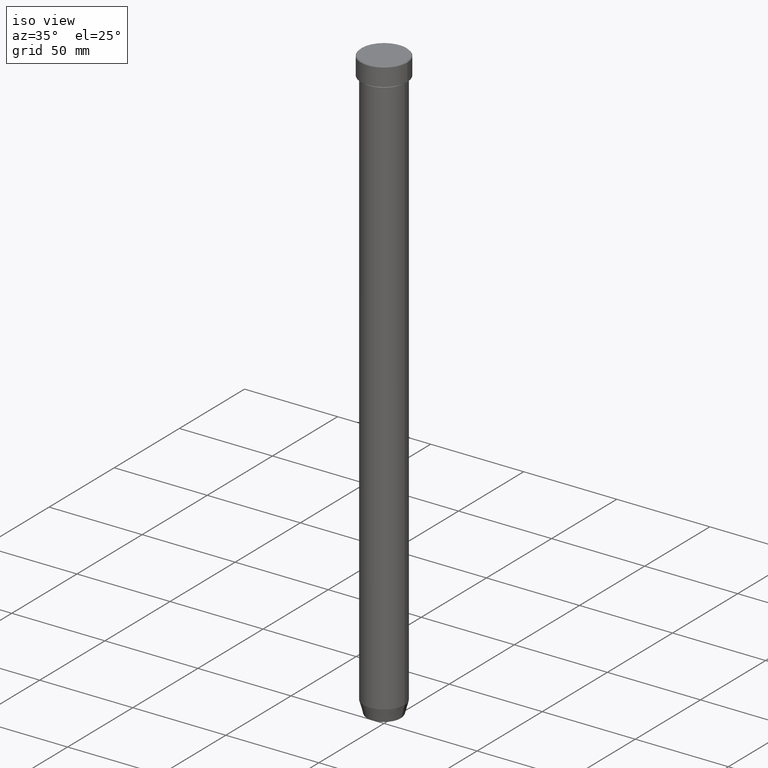
[diagram: clean part render]
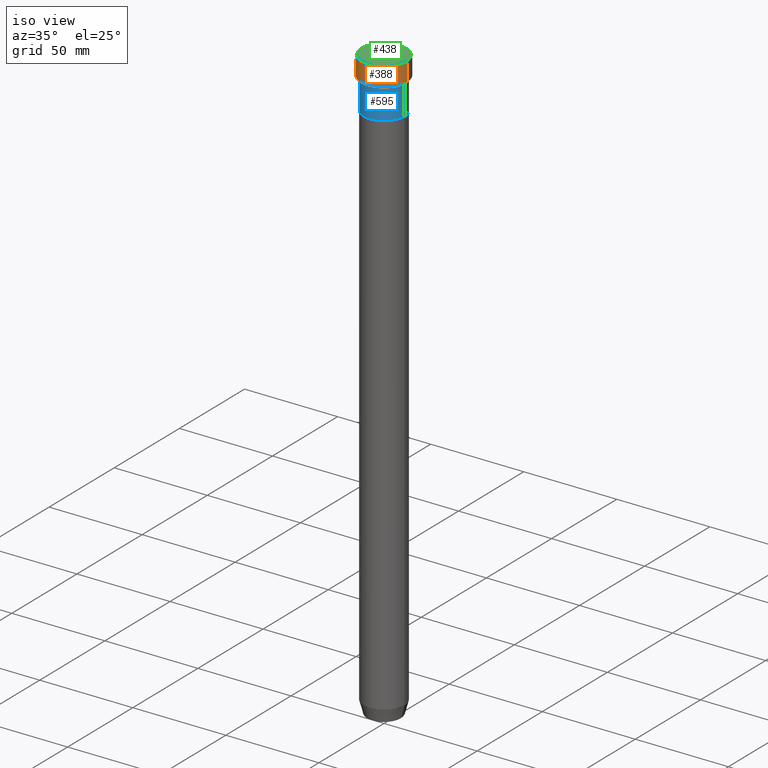
[diagram: same view with three faces highlighted in distinct colors, each labeled with its STEP entity id]
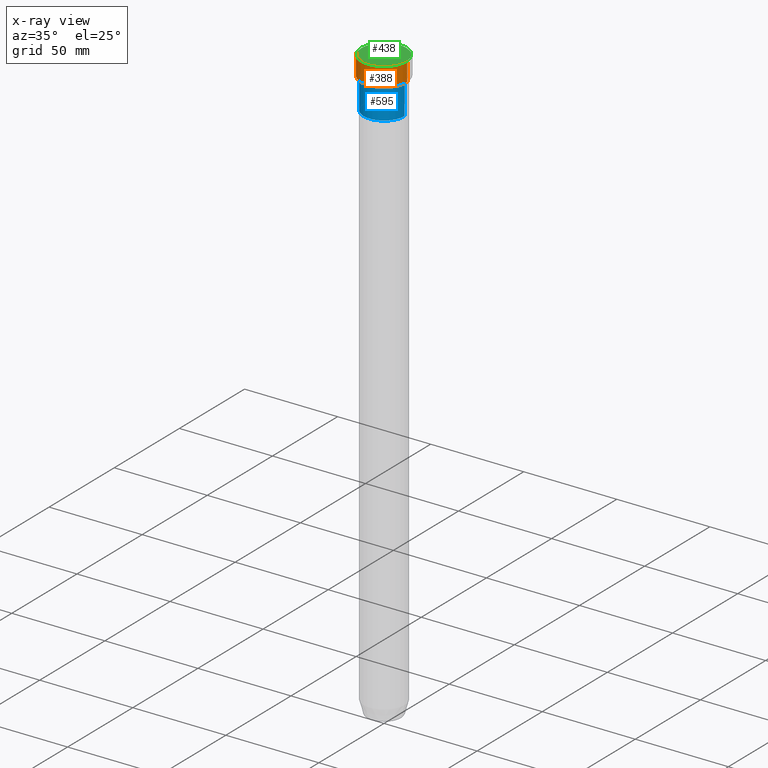
[diagram: x-ray of the same camera — body ghosted, the three highlighted faces saturated]
A machine part, iso view with three faces highlighted in distinct colors.
The next image is the same camera in x-ray (body ghosted, the three faces saturated) — at least one of them is partly hidden behind the body in this view.
Their STEP definitions:

[orange] entity #388 — the highlighted cylindrical surface (edge-blend (fillet) strip) has radius 12.5 mm, axis along (-0, -0, 1).
#42 = DIRECTION ( 'NONE',  ( 1.000000000000000000, 0.000000000000000000, 0.000000000000000000 ) ) ;
#57 = DIRECTION ( 'NONE',  ( 0.000000000000000000, 0.000000000000000000, -1.000000000000000000 ) ) ;
#67 = EDGE_LOOP ( 'NONE', ( #133, #260, #480, #423 ) ) ;
#99 = DIRECTION ( 'NONE',  ( 1.000000000000000000, 0.000000000000000000, 0.000000000000000000 ) ) ;
#108 = CARTESIAN_POINT ( 'NONE',  ( -12.50000000000000000, 1.530808498934191521E-15, -10.00000000000000000 ) ) ;
#123 = AXIS2_PLACEMENT_3D ( 'NONE', #468, #526, #99 ) ;
#133 = ORIENTED_EDGE ( 'NONE', *, *, #447, .F. ) ;
#160 = AXIS2_PLACEMENT_3D ( 'NONE', #475, #57, #520 ) ;
#192 = VECTOR ( 'NONE', #587, 1000.000000000000000 ) ;
#196 = CYLINDRICAL_SURFACE ( 'NONE', #123, 12.50000000000000000 ) ;
#212 = CARTESIAN_POINT ( 'NONE',  ( 0.000000000000000000, 0.000000000000000000, -10.00000000000000000 ) ) ;
#214 = DIRECTION ( 'NONE',  ( -0.000000000000000000, -0.000000000000000000, 1.000000000000000000 ) ) ;
#223 = CARTESIAN_POINT ( 'NONE',  ( 12.50000000000000000, 0.000000000000000000, -10.00000000000000000 ) ) ;
#253 = LINE ( 'NONE', #257, #192 ) ;
#254 = AXIS2_PLACEMENT_3D ( 'NONE', #212, #214, #42 ) ;
#257 = CARTESIAN_POINT ( 'NONE',  ( 12.50000000000000000, 0.000000000000000000, 0.000000000000000000 ) ) ;
#260 = ORIENTED_EDGE ( 'NONE', *, *, #277, .T. ) ;
#277 = EDGE_CURVE ( 'NONE', #413, #289, #554, .T. ) ;
#288 = CARTESIAN_POINT ( 'NONE',  ( -12.50000000000000000, 1.530808498934191521E-15, -0.4999999999999988343 ) ) ;
#289 = VERTEX_POINT ( 'NONE', #223 ) ;
#291 = VERTEX_POINT ( 'NONE', #504 ) ;
#327 = DIRECTION ( 'NONE',  ( -0.000000000000000000, -0.000000000000000000, 1.000000000000000000 ) ) ;
#331 = FACE_OUTER_BOUND ( 'NONE', #67, .T. ) ;
#371 = EDGE_CURVE ( 'NONE', #291, #393, #458, .T. ) ;
#388 = ADVANCED_FACE ( 'NONE', ( #331 ), #196, .T. ) ;
#393 = VERTEX_POINT ( 'NONE', #288 ) ;
#413 = VERTEX_POINT ( 'NONE', #108 ) ;
#423 = ORIENTED_EDGE ( 'NONE', *, *, #371, .T. ) ;
#447 = EDGE_CURVE ( 'NONE', #413, #393, #575, .T. ) ;
#458 = CIRCLE ( 'NONE', #160, 12.50000000000000000 ) ;
#468 = CARTESIAN_POINT ( 'NONE',  ( 0.000000000000000000, 0.000000000000000000, 0.000000000000000000 ) ) ;
#475 = CARTESIAN_POINT ( 'NONE',  ( 0.000000000000000000, 0.000000000000000000, -0.4999999999999988343 ) ) ;
#480 = ORIENTED_EDGE ( 'NONE', *, *, #590, .T. ) ;
#503 = VECTOR ( 'NONE', #327, 1000.000000000000000 ) ;
#504 = CARTESIAN_POINT ( 'NONE',  ( 12.50000000000000000, 0.000000000000000000, -0.4999999999999988343 ) ) ;
#520 = DIRECTION ( 'NONE',  ( 1.000000000000000000, 0.000000000000000000, 0.000000000000000000 ) ) ;
#526 = DIRECTION ( 'NONE',  ( -0.000000000000000000, -0.000000000000000000, 1.000000000000000000 ) ) ;
#554 = CIRCLE ( 'NONE', #254, 12.50000000000000000 ) ;
#575 = LINE ( 'NONE', #578, #503 ) ;
#578 = CARTESIAN_POINT ( 'NONE',  ( -12.50000000000000000, 1.530808498934191521E-15, 0.000000000000000000 ) ) ;
#587 = DIRECTION ( 'NONE',  ( -0.000000000000000000, -0.000000000000000000, 1.000000000000000000 ) ) ;
#590 = EDGE_CURVE ( 'NONE', #289, #291, #253, .T. ) ;

[blue] entity #595 — the highlighted cylindrical surface (edge-blend (fillet) strip) has radius 11 mm, axis along (-0, -0, 1).
#2 = ORIENTED_EDGE ( 'NONE', *, *, #148, .F. ) ;
#14 = EDGE_CURVE ( 'NONE', #295, #29, #341, .T. ) ;
#29 = VERTEX_POINT ( 'NONE', #304 ) ;
#43 = EDGE_CURVE ( 'NONE', #295, #348, #536, .T. ) ;
#71 = CYLINDRICAL_SURFACE ( 'NONE', #357, 11.00000000000000000 ) ;
#77 = CARTESIAN_POINT ( 'NONE',  ( -11.00000000000000000, 1.347111479062088405E-15, 0.000000000000000000 ) ) ;
#81 = CARTESIAN_POINT ( 'NONE',  ( 0.000000000000000000, 0.000000000000000000, -27.00000000000000000 ) ) ;
#116 = ORIENTED_EDGE ( 'NONE', *, *, #43, .T. ) ;
#139 = CARTESIAN_POINT ( 'NONE',  ( 0.000000000000000000, 0.000000000000000000, -11.00000000000000000 ) ) ;
#148 = EDGE_CURVE ( 'NONE', #29, #525, #366, .T. ) ;
#181 = VECTOR ( 'NONE', #283, 1000.000000000000000 ) ;
#186 = CARTESIAN_POINT ( 'NONE',  ( -11.00000000000000000, 1.347111479062088405E-15, -27.00000000000000000 ) ) ;
#215 = EDGE_LOOP ( 'NONE', ( #584, #116, #333, #2 ) ) ;
#283 = DIRECTION ( 'NONE',  ( -0.000000000000000000, -0.000000000000000000, 1.000000000000000000 ) ) ;
#290 = CARTESIAN_POINT ( 'NONE',  ( 11.00000000000000000, 0.000000000000000000, -11.00000000000000000 ) ) ;
#295 = VERTEX_POINT ( 'NONE', #186 ) ;
#304 = CARTESIAN_POINT ( 'NONE',  ( -11.00000000000000000, 1.347111479062088405E-15, -11.00000000000000000 ) ) ;
#321 = DIRECTION ( 'NONE',  ( 1.000000000000000000, 0.000000000000000000, 0.000000000000000000 ) ) ;
#333 = ORIENTED_EDGE ( 'NONE', *, *, #397, .T. ) ;
#341 = LINE ( 'NONE', #77, #428 ) ;
#348 = VERTEX_POINT ( 'NONE', #515 ) ;
#357 = AXIS2_PLACEMENT_3D ( 'NONE', #394, #390, #594 ) ;
#366 = CIRCLE ( 'NONE', #436, 11.00000000000000000 ) ;
#369 = LINE ( 'NONE', #424, #181 ) ;
#390 = DIRECTION ( 'NONE',  ( -0.000000000000000000, -0.000000000000000000, 1.000000000000000000 ) ) ;
#391 = DIRECTION ( 'NONE',  ( 1.000000000000000000, 0.000000000000000000, 0.000000000000000000 ) ) ;
#394 = CARTESIAN_POINT ( 'NONE',  ( 0.000000000000000000, 0.000000000000000000, 0.000000000000000000 ) ) ;
#397 = EDGE_CURVE ( 'NONE', #348, #525, #369, .T. ) ;
#424 = CARTESIAN_POINT ( 'NONE',  ( 11.00000000000000000, 0.000000000000000000, 0.000000000000000000 ) ) ;
#428 = VECTOR ( 'NONE', #593, 1000.000000000000000 ) ;
#436 = AXIS2_PLACEMENT_3D ( 'NONE', #139, #558, #321 ) ;
#492 = AXIS2_PLACEMENT_3D ( 'NONE', #81, #498, #391 ) ;
#498 = DIRECTION ( 'NONE',  ( -0.000000000000000000, -0.000000000000000000, 1.000000000000000000 ) ) ;
#515 = CARTESIAN_POINT ( 'NONE',  ( 11.00000000000000000, 0.000000000000000000, -27.00000000000000000 ) ) ;
#525 = VERTEX_POINT ( 'NONE', #290 ) ;
#536 = CIRCLE ( 'NONE', #492, 11.00000000000000000 ) ;
#539 = FACE_OUTER_BOUND ( 'NONE', #215, .T. ) ;
#558 = DIRECTION ( 'NONE',  ( -0.000000000000000000, -0.000000000000000000, 1.000000000000000000 ) ) ;
#584 = ORIENTED_EDGE ( 'NONE', *, *, #14, .F. ) ;
#593 = DIRECTION ( 'NONE',  ( -0.000000000000000000, -0.000000000000000000, 1.000000000000000000 ) ) ;
#594 = DIRECTION ( 'NONE',  ( 1.000000000000000000, 0.000000000000000000, 0.000000000000000000 ) ) ;
#595 = ADVANCED_FACE ( 'NONE', ( #539 ), #71, .T. ) ;

[green] entity #438 — the highlighted planar face has unit normal (0, -0, 1).
#20 = DIRECTION ( 'NONE',  ( 1.000000000000000000, 0.000000000000000000, 0.000000000000000000 ) ) ;
#30 = CIRCLE ( 'NONE', #244, 12.00000000000000355 ) ;
#35 = CARTESIAN_POINT ( 'NONE',  ( -12.00000000000000355, 0.000000000000000000, 0.000000000000000000 ) ) ;
#54 = DIRECTION ( 'NONE',  ( 0.000000000000000000, -0.000000000000000000, 1.000000000000000000 ) ) ;
#55 = CIRCLE ( 'NONE', #236, 12.00000000000000355 ) ;
#63 = CARTESIAN_POINT ( 'NONE',  ( 0.000000000000000000, 0.000000000000000000, 0.000000000000000000 ) ) ;
#96 = CARTESIAN_POINT ( 'NONE',  ( 0.000000000000000000, 0.000000000000000000, 0.000000000000000000 ) ) ;
#104 = CARTESIAN_POINT ( 'NONE',  ( 0.000000000000000000, 0.000000000000000000, 0.000000000000000000 ) ) ;
#109 = DIRECTION ( 'NONE',  ( 1.000000000000000000, 0.000000000000000000, 0.000000000000000000 ) ) ;
#128 = ORIENTED_EDGE ( 'NONE', *, *, #210, .T. ) ;
#155 = DIRECTION ( 'NONE',  ( -0.000000000000000000, -0.000000000000000000, 1.000000000000000000 ) ) ;
#164 = EDGE_CURVE ( 'NONE', #350, #265, #55, .T. ) ;
#179 = CARTESIAN_POINT ( 'NONE',  ( 12.00000000000000355, 1.500192328955507734E-15, 0.000000000000000000 ) ) ;
#195 = FACE_OUTER_BOUND ( 'NONE', #506, .T. ) ;
#210 = EDGE_CURVE ( 'NONE', #265, #350, #30, .T. ) ;
#226 = DIRECTION ( 'NONE',  ( -0.000000000000000000, -0.000000000000000000, 1.000000000000000000 ) ) ;
#236 = AXIS2_PLACEMENT_3D ( 'NONE', #96, #226, #314 ) ;
#244 = AXIS2_PLACEMENT_3D ( 'NONE', #104, #155, #109 ) ;
#265 = VERTEX_POINT ( 'NONE', #35 ) ;
#314 = DIRECTION ( 'NONE',  ( 1.000000000000000000, 0.000000000000000000, 0.000000000000000000 ) ) ;
#350 = VERTEX_POINT ( 'NONE', #179 ) ;
#370 = PLANE ( 'NONE',  #404 ) ;
#396 = ORIENTED_EDGE ( 'NONE', *, *, #164, .T. ) ;
#404 = AXIS2_PLACEMENT_3D ( 'NONE', #63, #54, #20 ) ;
#438 = ADVANCED_FACE ( 'NONE', ( #195 ), #370, .T. ) ;
#506 = EDGE_LOOP ( 'NONE', ( #128, #396 ) ) ;